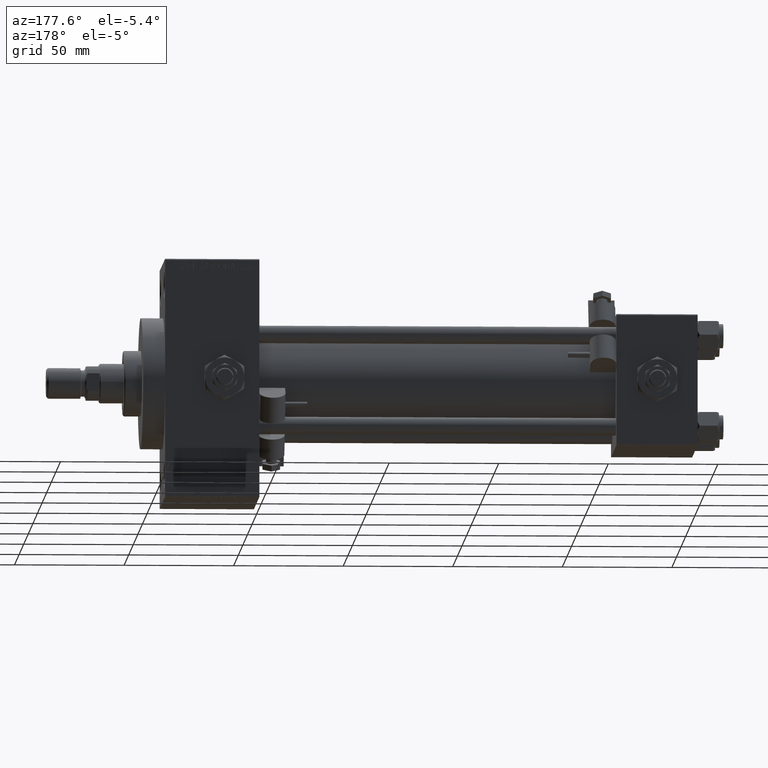
[diagram: clean part render]
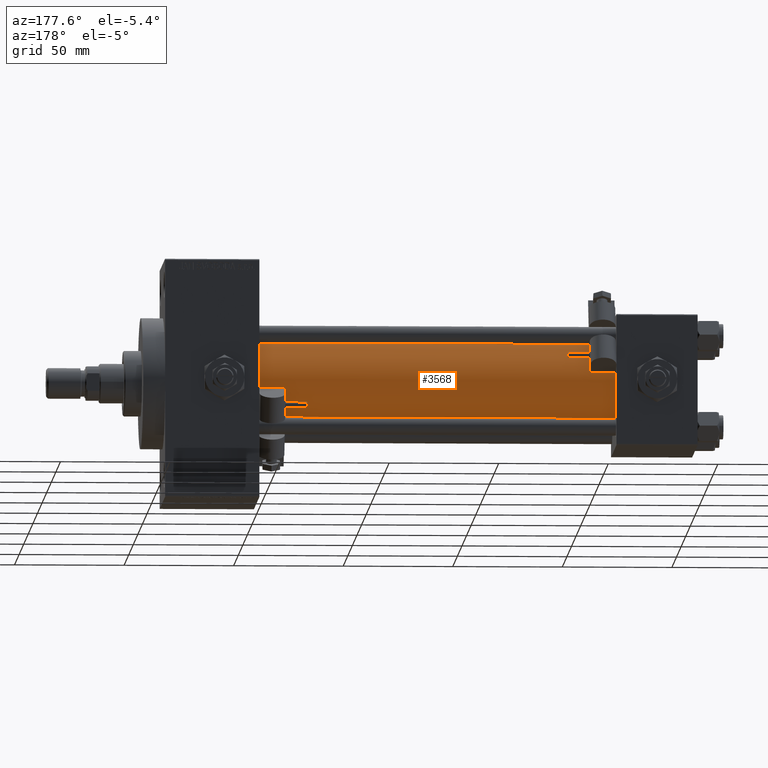
[diagram: same view with one face highlighted and labeled with its STEP entity id]
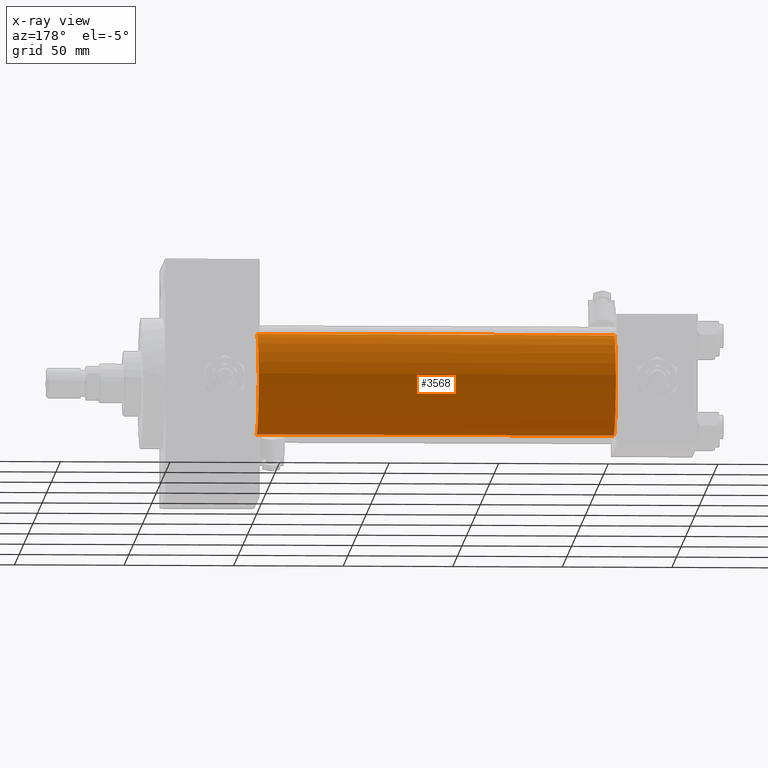
[diagram: x-ray of the same camera — body ghosted, the highlighted face saturated]
A machine part, auxiliary view. The second image highlights one B-rep face of the part: STEP entity #3568.
The next image is the same camera in x-ray: the body ghosted, the highlighted face saturated — about 0% of this face is hidden behind the body in this view.
In plain terms, the highlighted cylindrical surface (partial cylindrical patch) has radius 23 mm, axis along (-1, -0, -0).
Its self-contained STEP definition (entity closure, byte-faithful):
#1365 = DIRECTION ( 'NONE',  ( 0.000000000000000000, 0.000000000000000000, -1.000000000000000000 ) ) ;
#1926 = VERTEX_POINT ( 'NONE', #18554 ) ;
#3568 = ADVANCED_FACE ( 'NONE', ( #36963 ), #42092, .T. ) ;
#4444 = VECTOR ( 'NONE', #47951, 1000.000000000000000 ) ;
#5021 = CIRCLE ( 'NONE', #27990, 23.00000000000000000 ) ;
#6932 = CARTESIAN_POINT ( 'NONE',  ( 200.0000000000000000, -2.602085213965210642E-15, 23.00000000000000000 ) ) ;
#9617 = EDGE_LOOP ( 'NONE', ( #24661, #39614, #27107, #36689 ) ) ;
#12203 = VERTEX_POINT ( 'NONE', #36391 ) ;
#13244 = LINE ( 'NONE', #13492, #16391 ) ;
#13492 = CARTESIAN_POINT ( 'NONE',  ( 200.0000000000000000, 2.146024240737016609E-16, -23.00000000000000000 ) ) ;
#14070 = CARTESIAN_POINT ( 'NONE',  ( 200.0000000000000000, -2.602085213965210642E-15, 0.000000000000000000 ) ) ;
#16391 = VECTOR ( 'NONE', #44118, 1000.000000000000000 ) ;
#16581 = CARTESIAN_POINT ( 'NONE',  ( 200.0000000000000000, -2.602085213965210642E-15, 23.00000000000000000 ) ) ;
#18554 = CARTESIAN_POINT ( 'NONE',  ( 200.0000000000000000, 2.146024240737016609E-16, -23.00000000000000000 ) ) ;
#21204 = LINE ( 'NONE', #16581, #4444 ) ;
#24661 = ORIENTED_EDGE ( 'NONE', *, *, #49968, .F. ) ;
#27107 = ORIENTED_EDGE ( 'NONE', *, *, #45749, .T. ) ;
#27482 = EDGE_CURVE ( 'NONE', #42124, #31186, #21204, .T. ) ;
#27990 = AXIS2_PLACEMENT_3D ( 'NONE', #32126, #47561, #39845 ) ;
#29258 = DIRECTION ( 'NONE',  ( -1.000000000000000000, -0.000000000000000000, -0.000000000000000000 ) ) ;
#30477 = CIRCLE ( 'NONE', #37848, 23.00000000000000000 ) ;
#31186 = VERTEX_POINT ( 'NONE', #37114 ) ;
#32126 = CARTESIAN_POINT ( 'NONE',  ( 37.00000000000000711, -2.602085213965210642E-15, 0.000000000000000000 ) ) ;
#36391 = CARTESIAN_POINT ( 'NONE',  ( 37.00000000000000711, 2.146024240737016609E-16, -23.00000000000000000 ) ) ;
#36689 = ORIENTED_EDGE ( 'NONE', *, *, #27482, .F. ) ;
#36963 = FACE_OUTER_BOUND ( 'NONE', #9617, .T. ) ;
#37114 = CARTESIAN_POINT ( 'NONE',  ( 37.00000000000000711, -2.602085213965210642E-15, 23.00000000000000000 ) ) ;
#37848 = AXIS2_PLACEMENT_3D ( 'NONE', #45056, #49161, #1365 ) ;
#39614 = ORIENTED_EDGE ( 'NONE', *, *, #42658, .T. ) ;
#39845 = DIRECTION ( 'NONE',  ( 0.000000000000000000, 0.000000000000000000, 1.000000000000000000 ) ) ;
#41333 = DIRECTION ( 'NONE',  ( 0.000000000000000000, 0.000000000000000000, 1.000000000000000000 ) ) ;
#42092 = CYLINDRICAL_SURFACE ( 'NONE', #42520, 23.00000000000000000 ) ;
#42124 = VERTEX_POINT ( 'NONE', #6932 ) ;
#42520 = AXIS2_PLACEMENT_3D ( 'NONE', #14070, #29258, #41333 ) ;
#42658 = EDGE_CURVE ( 'NONE', #1926, #12203, #13244, .T. ) ;
#44118 = DIRECTION ( 'NONE',  ( -1.000000000000000000, -0.000000000000000000, -0.000000000000000000 ) ) ;
#45056 = CARTESIAN_POINT ( 'NONE',  ( 200.0000000000000000, -2.602085213965210642E-15, 0.000000000000000000 ) ) ;
#45749 = EDGE_CURVE ( 'NONE', #12203, #31186, #5021, .T. ) ;
#47561 = DIRECTION ( 'NONE',  ( 1.000000000000000000, -0.000000000000000000, 0.000000000000000000 ) ) ;
#47951 = DIRECTION ( 'NONE',  ( -1.000000000000000000, -0.000000000000000000, -0.000000000000000000 ) ) ;
#49161 = DIRECTION ( 'NONE',  ( 1.000000000000000000, 0.000000000000000000, 0.000000000000000000 ) ) ;
#49968 = EDGE_CURVE ( 'NONE', #1926, #42124, #30477, .T. ) ;